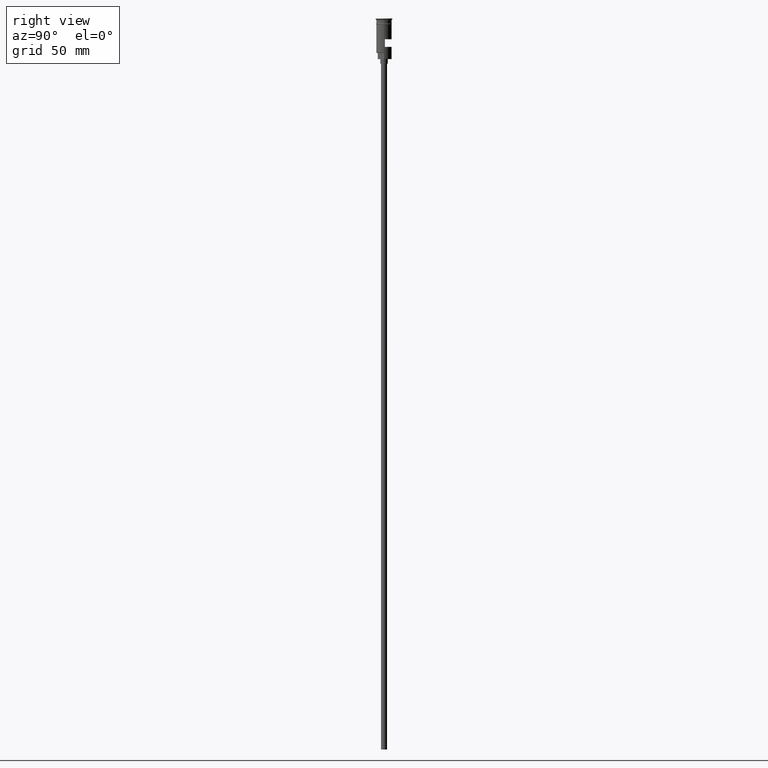
[diagram: clean part render]
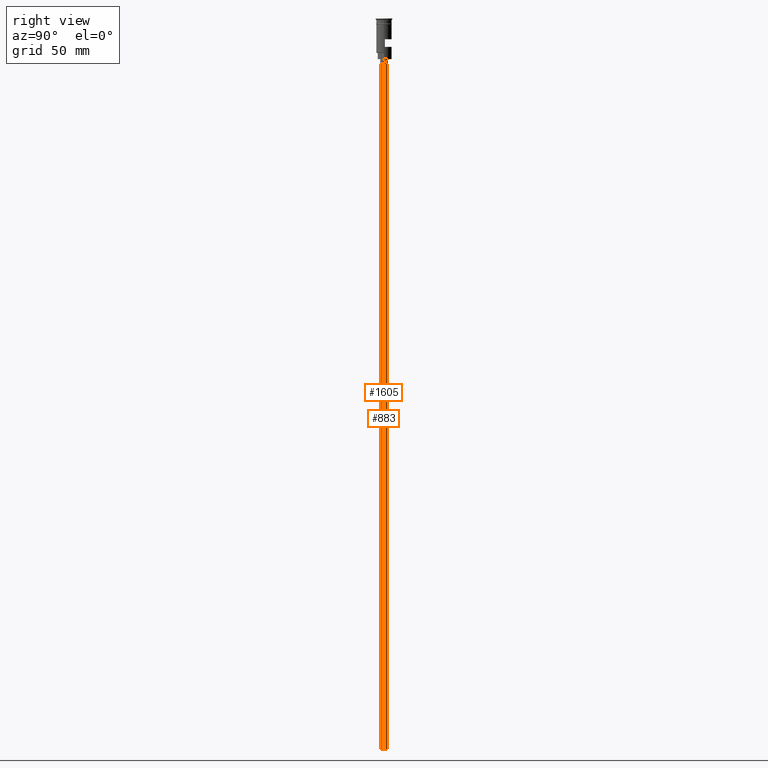
[diagram: same view with one multi-face feature highlighted, each face labeled with its STEP entity id]
A machine part, right view. The highlighted faces form ONE feature: a constant-radius fillet chain: 2 tangent blend faces with common blend radius 2 mm. The faces share edges in the B-rep.
Their STEP definitions:
[1] entity #1605 (Cylinder):
#62 = LINE ( 'NONE', #448, #1067 ) ;
#69 = AXIS2_PLACEMENT_3D ( 'NONE', #83, #342, #1322 ) ;
#75 = ORIENTED_EDGE ( 'NONE', *, *, #562, .T. ) ;
#83 = CARTESIAN_POINT ( 'NONE',  ( 0.000000000000000000, 0.000000000000000000, -476.5000000000000568 ) ) ;
#87 = FACE_OUTER_BOUND ( 'NONE', #1550, .T. ) ;
#109 = DIRECTION ( 'NONE',  ( -1.000000000000000000, 0.000000000000000000, 0.000000000000000000 ) ) ;
#148 = CARTESIAN_POINT ( 'NONE',  ( 2.000000000000000000, 0.000000000000000000, -29.50000000000000000 ) ) ;
#155 = CARTESIAN_POINT ( 'NONE',  ( -2.000000000000000000, 2.449293598294706414E-16, -29.50000000000000000 ) ) ;
#276 = CIRCLE ( 'NONE', #69, 2.000000000000000000 ) ;
#288 = ORIENTED_EDGE ( 'NONE', *, *, #1434, .F. ) ;
#342 = DIRECTION ( 'NONE',  ( 0.000000000000000000, 0.000000000000000000, -1.000000000000000000 ) ) ;
#365 = AXIS2_PLACEMENT_3D ( 'NONE', #1081, #1588, #489 ) ;
#381 = LINE ( 'NONE', #662, #1227 ) ;
#390 = CARTESIAN_POINT ( 'NONE',  ( -2.000000000000000000, 2.449293598294706414E-16, -476.5000000000000568 ) ) ;
#448 = CARTESIAN_POINT ( 'NONE',  ( -2.000000000000000000, 2.449293598294706414E-16, -476.5000000000000568 ) ) ;
#489 = DIRECTION ( 'NONE',  ( 1.000000000000000000, 0.000000000000000000, 0.000000000000000000 ) ) ;
#562 = EDGE_CURVE ( 'NONE', #842, #1014, #1276, .T. ) ;
#603 = CYLINDRICAL_SURFACE ( 'NONE', #365, 2.000000000000000000 ) ;
#662 = CARTESIAN_POINT ( 'NONE',  ( 2.000000000000000000, 0.000000000000000000, -476.5000000000000568 ) ) ;
#707 = ORIENTED_EDGE ( 'NONE', *, *, #1155, .T. ) ;
#795 = DIRECTION ( 'NONE',  ( -0.000000000000000000, -0.000000000000000000, 1.000000000000000000 ) ) ;
#804 = VERTEX_POINT ( 'NONE', #390 ) ;
#826 = CARTESIAN_POINT ( 'NONE',  ( 0.000000000000000000, 0.000000000000000000, -29.50000000000000000 ) ) ;
#842 = VERTEX_POINT ( 'NONE', #155 ) ;
#1014 = VERTEX_POINT ( 'NONE', #148 ) ;
#1067 = VECTOR ( 'NONE', #795, 1000.000000000000000 ) ;
#1078 = ORIENTED_EDGE ( 'NONE', *, *, #1226, .F. ) ;
#1081 = CARTESIAN_POINT ( 'NONE',  ( 0.000000000000000000, 0.000000000000000000, -476.5000000000000568 ) ) ;
#1144 = DIRECTION ( 'NONE',  ( -0.000000000000000000, -0.000000000000000000, 1.000000000000000000 ) ) ;
#1155 = EDGE_CURVE ( 'NONE', #804, #842, #62, .T. ) ;
#1207 = DIRECTION ( 'NONE',  ( 0.000000000000000000, 0.000000000000000000, -1.000000000000000000 ) ) ;
#1226 = EDGE_CURVE ( 'NONE', #804, #1415, #276, .T. ) ;
#1227 = VECTOR ( 'NONE', #1144, 1000.000000000000000 ) ;
#1276 = CIRCLE ( 'NONE', #1517, 2.000000000000000000 ) ;
#1322 = DIRECTION ( 'NONE',  ( -1.000000000000000000, 0.000000000000000000, 0.000000000000000000 ) ) ;
#1389 = CARTESIAN_POINT ( 'NONE',  ( 2.000000000000000000, 0.000000000000000000, -476.5000000000000568 ) ) ;
#1415 = VERTEX_POINT ( 'NONE', #1389 ) ;
#1434 = EDGE_CURVE ( 'NONE', #1415, #1014, #381, .T. ) ;
#1517 = AXIS2_PLACEMENT_3D ( 'NONE', #826, #1207, #109 ) ;
#1550 = EDGE_LOOP ( 'NONE', ( #1078, #707, #75, #288 ) ) ;
#1588 = DIRECTION ( 'NONE',  ( -0.000000000000000000, -0.000000000000000000, 1.000000000000000000 ) ) ;
#1605 = ADVANCED_FACE ( 'NONE', ( #87 ), #603, .T. ) ;
[2] entity #883 (Cylinder):
#51 = ORIENTED_EDGE ( 'NONE', *, *, #1575, .T. ) ;
#62 = LINE ( 'NONE', #448, #1067 ) ;
#148 = CARTESIAN_POINT ( 'NONE',  ( 2.000000000000000000, 0.000000000000000000, -29.50000000000000000 ) ) ;
#155 = CARTESIAN_POINT ( 'NONE',  ( -2.000000000000000000, 2.449293598294706414E-16, -29.50000000000000000 ) ) ;
#220 = DIRECTION ( 'NONE',  ( 0.000000000000000000, 0.000000000000000000, -1.000000000000000000 ) ) ;
#306 = CIRCLE ( 'NONE', #1339, 2.000000000000000000 ) ;
#326 = DIRECTION ( 'NONE',  ( 1.000000000000000000, 0.000000000000000000, 0.000000000000000000 ) ) ;
#381 = LINE ( 'NONE', #662, #1227 ) ;
#390 = CARTESIAN_POINT ( 'NONE',  ( -2.000000000000000000, 2.449293598294706414E-16, -476.5000000000000568 ) ) ;
#429 = DIRECTION ( 'NONE',  ( -0.000000000000000000, -0.000000000000000000, 1.000000000000000000 ) ) ;
#448 = CARTESIAN_POINT ( 'NONE',  ( -2.000000000000000000, 2.449293598294706414E-16, -476.5000000000000568 ) ) ;
#472 = CIRCLE ( 'NONE', #594, 2.000000000000000000 ) ;
#557 = FACE_OUTER_BOUND ( 'NONE', #932, .T. ) ;
#594 = AXIS2_PLACEMENT_3D ( 'NONE', #1501, #868, #748 ) ;
#641 = EDGE_CURVE ( 'NONE', #1415, #804, #472, .T. ) ;
#662 = CARTESIAN_POINT ( 'NONE',  ( 2.000000000000000000, 0.000000000000000000, -476.5000000000000568 ) ) ;
#706 = AXIS2_PLACEMENT_3D ( 'NONE', #1535, #429, #326 ) ;
#723 = DIRECTION ( 'NONE',  ( -1.000000000000000000, 0.000000000000000000, 0.000000000000000000 ) ) ;
#748 = DIRECTION ( 'NONE',  ( -1.000000000000000000, 0.000000000000000000, 0.000000000000000000 ) ) ;
#795 = DIRECTION ( 'NONE',  ( -0.000000000000000000, -0.000000000000000000, 1.000000000000000000 ) ) ;
#804 = VERTEX_POINT ( 'NONE', #390 ) ;
#829 = ORIENTED_EDGE ( 'NONE', *, *, #641, .F. ) ;
#842 = VERTEX_POINT ( 'NONE', #155 ) ;
#868 = DIRECTION ( 'NONE',  ( 0.000000000000000000, 0.000000000000000000, -1.000000000000000000 ) ) ;
#883 = ADVANCED_FACE ( 'NONE', ( #557 ), #1026, .T. ) ;
#932 = EDGE_LOOP ( 'NONE', ( #1364, #829, #1323, #51 ) ) ;
#1014 = VERTEX_POINT ( 'NONE', #148 ) ;
#1026 = CYLINDRICAL_SURFACE ( 'NONE', #706, 2.000000000000000000 ) ;
#1067 = VECTOR ( 'NONE', #795, 1000.000000000000000 ) ;
#1144 = DIRECTION ( 'NONE',  ( -0.000000000000000000, -0.000000000000000000, 1.000000000000000000 ) ) ;
#1155 = EDGE_CURVE ( 'NONE', #804, #842, #62, .T. ) ;
#1227 = VECTOR ( 'NONE', #1144, 1000.000000000000000 ) ;
#1323 = ORIENTED_EDGE ( 'NONE', *, *, #1434, .T. ) ;
#1339 = AXIS2_PLACEMENT_3D ( 'NONE', #1596, #220, #723 ) ;
#1364 = ORIENTED_EDGE ( 'NONE', *, *, #1155, .F. ) ;
#1389 = CARTESIAN_POINT ( 'NONE',  ( 2.000000000000000000, 0.000000000000000000, -476.5000000000000568 ) ) ;
#1415 = VERTEX_POINT ( 'NONE', #1389 ) ;
#1434 = EDGE_CURVE ( 'NONE', #1415, #1014, #381, .T. ) ;
#1501 = CARTESIAN_POINT ( 'NONE',  ( 0.000000000000000000, 0.000000000000000000, -476.5000000000000568 ) ) ;
#1535 = CARTESIAN_POINT ( 'NONE',  ( 0.000000000000000000, 0.000000000000000000, -476.5000000000000568 ) ) ;
#1575 = EDGE_CURVE ( 'NONE', #1014, #842, #306, .T. ) ;
#1596 = CARTESIAN_POINT ( 'NONE',  ( 0.000000000000000000, 0.000000000000000000, -29.50000000000000000 ) ) ;